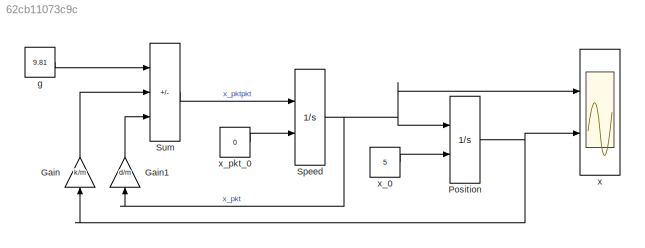
MODEL slx_62cb11073c9c
KIND model
CONFIG AbsTol = auto
CONFIG EnableMultiTasking = off
CONFIG FixedStep = 0.02
CONFIG MaxStep = auto
CONFIG MinStep = auto
CONFIG RelTol = 1e-3
CONFIG SampleTimeConstraint = Unconstrained
CONFIG SolverName = ode4
CONFIG StartTime = 0.0
CONFIG StopTime = 15
BLOCK [Gain] Gain
  Gain = k/m
  NameLocation = right
BLOCK [Gain] Gain1
  Gain = d/m
  NameLocation = right
BLOCK [Integrator] Position
  ContinuousStateAttributes = 'Position'
  InitialConditionSource = external
  Ports = [2, 1]
BLOCK [Integrator] Speed
  ContinuousStateAttributes = 'speed'
  InitialConditionSource = external
  Ports = [2, 1]
BLOCK [Sum] Sum
  IconShape = rectangular
  Inputs = +--
  Ports = [3, 1]
BLOCK [Constant] g
  Value = 9.81
BLOCK [Scope] x
  Floating = off
  NumInputPorts = 2
  Ports = [2]
  ScopeSpecificationString = Simulink.scopes.TimeScopeBlockCfg('CurrentConfiguration', extmgr.ConfigurationSet(extmgr.Configuration('Core','General UI',true),extmgr.Configuration('Core','Source UI',true),extmgr.Configuration('Sources','WiredSimulink',true),extmgr.Configuration('Visuals','Time Domain',true,'SerializedDisplays',{struct('MinYLimReal','-6.23782','MaxYLimReal','6.24865','YLabelReal','','MinYLimMag','0.00000','MaxY...<+1334ch>
BLOCK [Constant] x_0
  Value = 5
BLOCK [Constant] x_pkt_0
  Value = 0
LINE Gain1:1 -> Sum:3
LINE Gain:1 -> Sum:2
NET Position:1 -> Gain:1, x:2
NET Speed:1 -> Gain1:1, Position:1, x:1
LINE Sum:1 -> Speed:1
LINE g:1 -> Sum:1
LINE x_0:1 -> Position:2
LINE x_pkt_0:1 -> Speed:2
note: NET lines group one-source signal fan-out (src -> all destinations, sorted); 1:1 wires keep LINE
